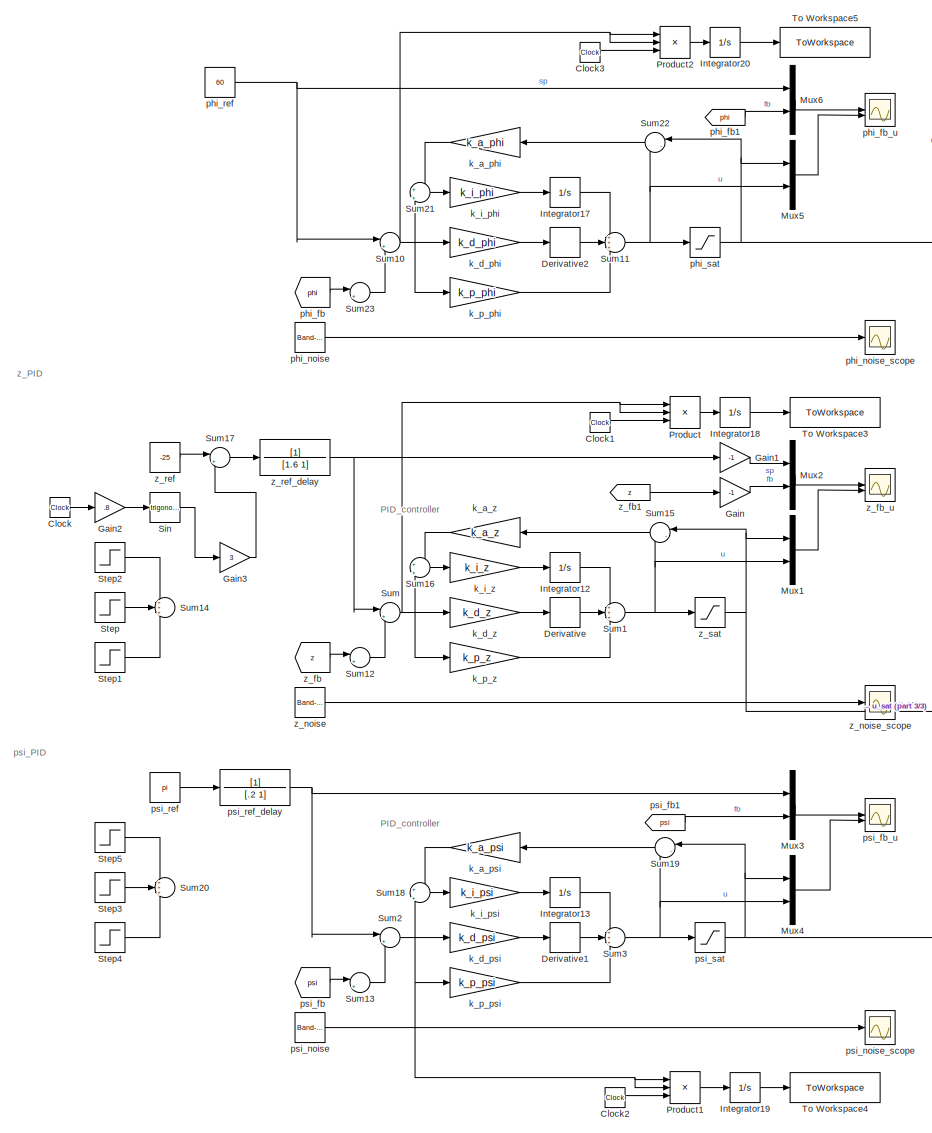
[diagram: root canvas - part 1/3, center side, full height]
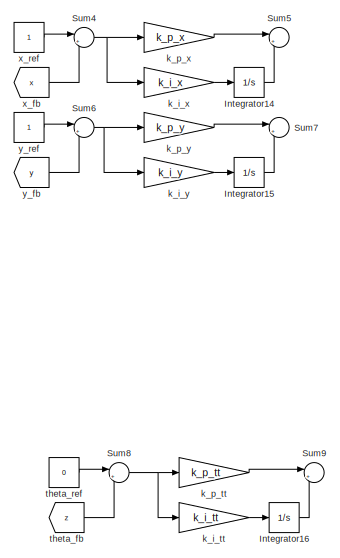
[diagram: root canvas - part 2/3, top left region]
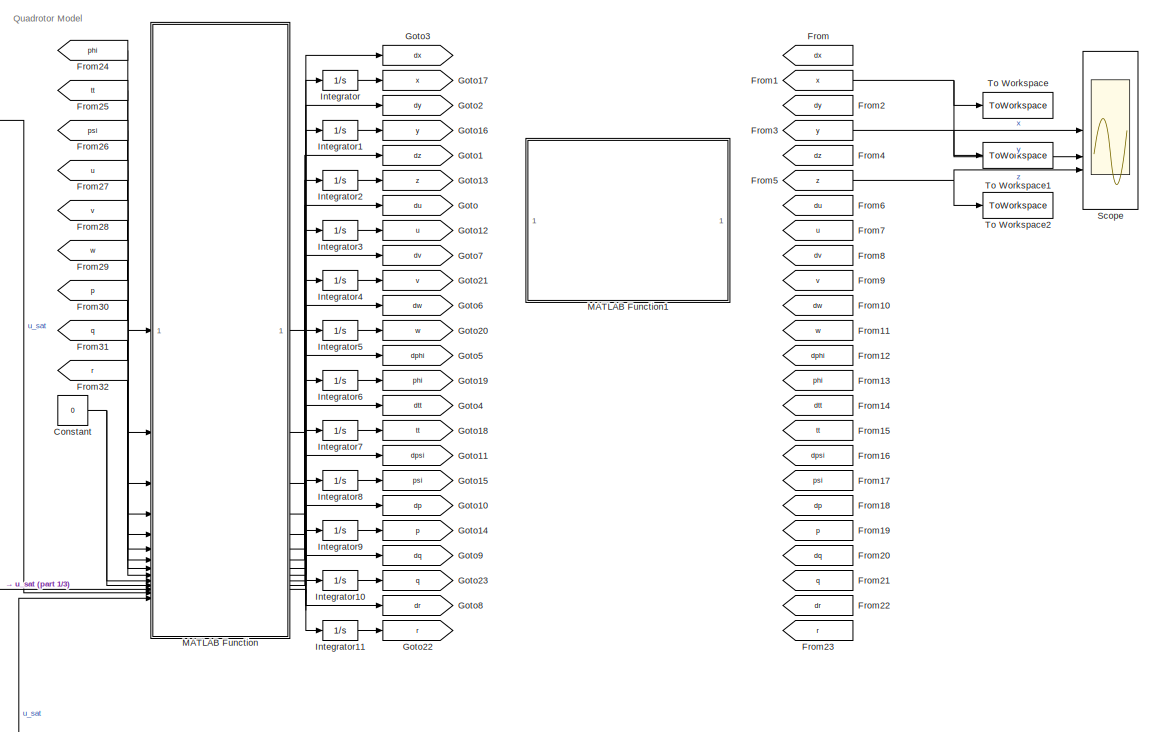
[diagram: root canvas - part 3/3, middle right region]
MODEL slx_5ff0565ddea8
KIND model
CONFIG AbsTol = auto
CONFIG EnableMultiTasking = off
CONFIG FixedStep = 1e-4
CONFIG InitFcn = % z\nk_p_z = -9.64;\nk_i_z = -5.55;\nk_d_z = -7.46;\nk_a_z = 1.37;\n\n%psi\nk_p_psi = 6.91;\nk_i_psi = 8.79;\nk_d_psi = 3.95;\nk_a_psi = -3.71;
CONFIG MaxStep = auto
CONFIG MinStep = auto
CONFIG RelTol = 1e-3
CONFIG SampleTimeConstraint = Unconstrained
CONFIG SolverName = FixedStepAuto
CONFIG StartTime = 0.0
CONFIG StopFcn = % plot3(x,y,-z);\n% xlabel('x');\n% ylabel('y');\n% zlabel('z');\n% grid on;
CONFIG StopTime = 15
BLOCK [Clock] Clock
BLOCK [Clock] Clock1
  Commented = on
BLOCK [Clock] Clock2
  Commented = on
BLOCK [Clock] Clock3
BLOCK [Constant] Constant
  Value = 0
BLOCK [Derivative] Derivative
BLOCK [Derivative] Derivative1
BLOCK [Derivative] Derivative2
BLOCK [From] From
  GotoTag = dx
BLOCK [From] From1
  GotoTag = x
BLOCK [From] From10
  GotoTag = dw
BLOCK [From] From11
  GotoTag = w
BLOCK [From] From12
  GotoTag = dphi
BLOCK [From] From13
  GotoTag = phi
BLOCK [From] From14
  GotoTag = dtt
BLOCK [From] From15
  GotoTag = tt
BLOCK [From] From16
  GotoTag = dpsi
BLOCK [From] From17
  GotoTag = psi
BLOCK [From] From18
  GotoTag = dp
BLOCK [From] From19
  GotoTag = p
BLOCK [From] From2
  GotoTag = dy
BLOCK [From] From20
  GotoTag = dq
BLOCK [From] From21
  GotoTag = q
BLOCK [From] From22
  GotoTag = dr
BLOCK [From] From23
  GotoTag = r
BLOCK [From] From24
  GotoTag = phi
BLOCK [From] From25
  GotoTag = tt
BLOCK [From] From26
  GotoTag = psi
BLOCK [From] From27
  GotoTag = u
BLOCK [From] From28
  GotoTag = v
BLOCK [From] From29
  GotoTag = w
BLOCK [From] From3
  GotoTag = y
BLOCK [From] From30
  GotoTag = p
BLOCK [From] From31
  GotoTag = q
BLOCK [From] From32
  GotoTag = r
BLOCK [From] From4
  GotoTag = dz
BLOCK [From] From5
  GotoTag = z
BLOCK [From] From6
  GotoTag = du
BLOCK [From] From7
  GotoTag = u
BLOCK [From] From8
  GotoTag = dv
BLOCK [From] From9
  GotoTag = v
BLOCK [Gain] Gain
  Gain = -1
BLOCK [Gain] Gain1
  Gain = -1
BLOCK [Gain] Gain2
  Gain = .8
BLOCK [Gain] Gain3
  Gain = 3
BLOCK [Goto] Goto
  GotoTag = du
BLOCK [Goto] Goto1
  GotoTag = dz
BLOCK [Goto] Goto10
  GotoTag = dp
BLOCK [Goto] Goto11
  GotoTag = dpsi
BLOCK [Goto] Goto12
  GotoTag = u
BLOCK [Goto] Goto13
  GotoTag = z
BLOCK [Goto] Goto14
  GotoTag = p
BLOCK [Goto] Goto15
  GotoTag = psi
BLOCK [Goto] Goto16
  GotoTag = y
BLOCK [Goto] Goto17
  GotoTag = x
BLOCK [Goto] Goto18
  GotoTag = tt
BLOCK [Goto] Goto19
  GotoTag = phi
BLOCK [Goto] Goto2
  GotoTag = dy
BLOCK [Goto] Goto20
  GotoTag = w
BLOCK [Goto] Goto21
  GotoTag = v
BLOCK [Goto] Goto22
  GotoTag = r
BLOCK [Goto] Goto23
  GotoTag = q
BLOCK [Goto] Goto3
  GotoTag = dx
BLOCK [Goto] Goto4
  GotoTag = dtt
BLOCK [Goto] Goto5
  GotoTag = dphi
BLOCK [Goto] Goto6
  GotoTag = dw
BLOCK [Goto] Goto7
  GotoTag = dv
BLOCK [Goto] Goto8
  GotoTag = dr
BLOCK [Goto] Goto9
  GotoTag = dq
BLOCK [Integrator] Integrator
BLOCK [Integrator] Integrator1
BLOCK [Integrator] Integrator10
  LimitOutput = on
  LowerSaturationLimit = -1000
  UpperSaturationLimit = 1000
BLOCK [Integrator] Integrator11
  LimitOutput = on
  LowerSaturationLimit = -1000
  UpperSaturationLimit = 1000
BLOCK [Integrator] Integrator12
  LowerSaturationLimit = -10000
  UpperSaturationLimit = 10000
BLOCK [Integrator] Integrator13
  LowerSaturationLimit = -100
  UpperSaturationLimit = 100
BLOCK [Integrator] Integrator14
  Commented = on
BLOCK [Integrator] Integrator15
  Commented = on
BLOCK [Integrator] Integrator16
  Commented = on
BLOCK [Integrator] Integrator17
  LimitOutput = on
  LowerSaturationLimit = -1000
  UpperSaturationLimit = 1000
BLOCK [Integrator] Integrator18
  Commented = on
BLOCK [Integrator] Integrator19
  Commented = on
BLOCK [Integrator] Integrator2
  InitialCondition = -10
  LimitOutput = on
  LowerSaturationLimit = -1000
  UpperSaturationLimit = 0
BLOCK [Integrator] Integrator20
BLOCK [Integrator] Integrator3
  LimitOutput = on
  LowerSaturationLimit = -10000
  UpperSaturationLimit = 10000
BLOCK [Integrator] Integrator4
  LimitOutput = on
  LowerSaturationLimit = -10000
  UpperSaturationLimit = 10000
BLOCK [Integrator] Integrator5
  LimitOutput = on
  LowerSaturationLimit = -1000
  UpperSaturationLimit = 1000
BLOCK [Integrator] Integrator6
  LimitOutput = on
  LowerSaturationLimit = -100
  UpperSaturationLimit = 100
BLOCK [Integrator] Integrator7
  LimitOutput = on
  LowerSaturationLimit = -100
  UpperSaturationLimit = 100
BLOCK [Integrator] Integrator8
  LowerSaturationLimit = -100
  UpperSaturationLimit = 100
BLOCK [Integrator] Integrator9
  LimitOutput = on
  LowerSaturationLimit = -1000
  UpperSaturationLimit = 1000
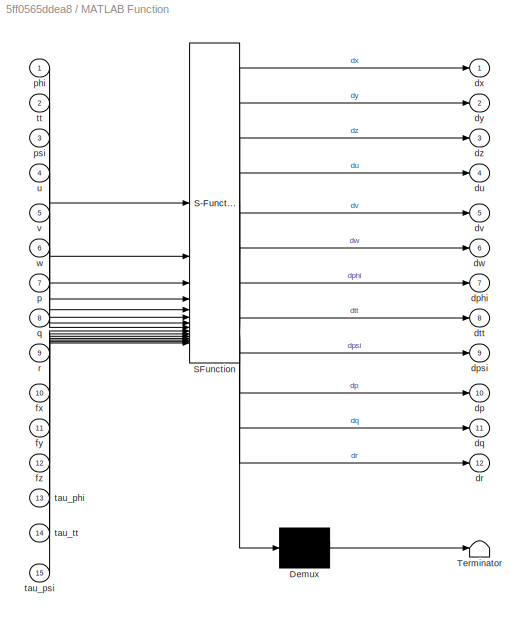
BLOCK [SubSystem] MATLAB Function
  ErrorFcn = Stateflow.Translate.translate
  LibrarySourceBlock = simulink/User-Defined\nFunctions/MATLAB Function
  PermitHierarchicalResolution = ExplicitOnly
  SFBlockType = MATLAB Function
  TreatAsAtomicUnit = on
BLOCK [Demux] MATLAB Function/ Demux 
  Outputs = 1
BLOCK [S-Function] MATLAB Function/ SFunction 
  EnableBusSupport = on
  FunctionName = sf_sfun
  PortCounts = [15 13]
  SFcnIsStateOwnerBlock = off
  SFunctionDeploymentMode = off
  Tag = Stateflow S-Function 2
BLOCK [Terminator] MATLAB Function/ Terminator 
BLOCK [Outport] MATLAB Function/dp
  Port = 10
BLOCK [Outport] MATLAB Function/dphi
  Port = 7
BLOCK [Outport] MATLAB Function/dpsi
  Port = 9
BLOCK [Outport] MATLAB Function/dq
  Port = 11
BLOCK [Outport] MATLAB Function/dr
  Port = 12
BLOCK [Outport] MATLAB Function/dtt
  Port = 8
BLOCK [Outport] MATLAB Function/du
  Port = 4
BLOCK [Outport] MATLAB Function/dv
  Port = 5
BLOCK [Outport] MATLAB Function/dw
  Port = 6
BLOCK [Outport] MATLAB Function/dx
BLOCK [Outport] MATLAB Function/dy
  Port = 2
BLOCK [Outport] MATLAB Function/dz
  Port = 3
BLOCK [Inport] MATLAB Function/fx
  Port = 10
BLOCK [Inport] MATLAB Function/fy
  Port = 11
BLOCK [Inport] MATLAB Function/fz
  Port = 12
BLOCK [Inport] MATLAB Function/p
  Port = 7
BLOCK [Inport] MATLAB Function/phi
BLOCK [Inport] MATLAB Function/psi
  Port = 3
BLOCK [Inport] MATLAB Function/q
  Port = 8
BLOCK [Inport] MATLAB Function/r
  Port = 9
BLOCK [Inport] MATLAB Function/tau_phi
  Port = 13
BLOCK [Inport] MATLAB Function/tau_psi
  Port = 15
BLOCK [Inport] MATLAB Function/tau_tt
  Port = 14
BLOCK [Inport] MATLAB Function/tt
  Port = 2
BLOCK [Inport] MATLAB Function/u
  Port = 4
BLOCK [Inport] MATLAB Function/v
  Port = 5
BLOCK [Inport] MATLAB Function/w
  Port = 6
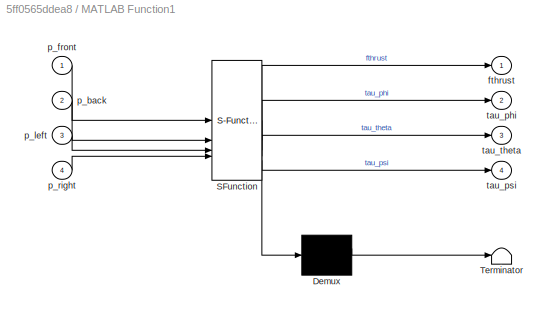
BLOCK [SubSystem] MATLAB Function1
  Commented = on
  ErrorFcn = Stateflow.Translate.translate
  PermitHierarchicalResolution = ExplicitOnly
  SFBlockType = MATLAB Function
  TreatAsAtomicUnit = on
BLOCK [Demux] MATLAB Function1/ Demux 
  Outputs = 1
BLOCK [S-Function] MATLAB Function1/ SFunction 
  EnableBusSupport = on
  FunctionName = sf_sfun
  PortCounts = [4 5]
  SFcnIsStateOwnerBlock = off
  SFunctionDeploymentMode = off
  Tag = Stateflow S-Function 1
BLOCK [Terminator] MATLAB Function1/ Terminator 
BLOCK [Outport] MATLAB Function1/fthrust
BLOCK [Inport] MATLAB Function1/p_back
  Port = 2
BLOCK [Inport] MATLAB Function1/p_front
BLOCK [Inport] MATLAB Function1/p_left
  Port = 3
BLOCK [Inport] MATLAB Function1/p_right
  Port = 4
BLOCK [Outport] MATLAB Function1/tau_phi
  Port = 2
BLOCK [Outport] MATLAB Function1/tau_psi
  Port = 4
BLOCK [Outport] MATLAB Function1/tau_theta
  Port = 3
BLOCK [Mux] Mux1
  DisplayOption = bar
  Inputs = 2
  NameLocation = top
BLOCK [Mux] Mux2
  DisplayOption = bar
  Inputs = 2
  NameLocation = top
BLOCK [Mux] Mux3
  DisplayOption = bar
  Inputs = 2
  NameLocation = top
BLOCK [Mux] Mux4
  DisplayOption = bar
  Inputs = 2
  NameLocation = top
BLOCK [Mux] Mux5
  DisplayOption = bar
  Inputs = 2
  NameLocation = top
BLOCK [Mux] Mux6
  DisplayOption = bar
  Inputs = 2
  NameLocation = top
BLOCK [Product] Product
  Commented = on
  Inputs = 3
BLOCK [Product] Product1
  Commented = on
  Inputs = 3
BLOCK [Product] Product2
  Inputs = 3
BLOCK [Scope] Scope
  Floating = off
  NumInputPorts = 3
  ScopeSpecificationString = Simulink.scopes.TimeScopeBlockCfg('CurrentConfiguration', extmgr.ConfigurationSet(extmgr.Configuration('Core','General UI',true,'FigureColor',[1 1 1]),extmgr.Configuration('Core','Source UI',true),extmgr.Configuration('Sources','WiredSimulink',true),extmgr.Configuration('Visuals','Time Domain',true,'SerializedDisplays',{struct('MinYLimReal','-0.11494','MaxYLimReal','0.1867','YLabelReal','','MinYLi...<+3043ch>
BLOCK [Trigonometry] Sin
BLOCK [Step] Step
  After = -20
  SampleTime = 0
  Time = 25
BLOCK [Step] Step1
  After = 15
  SampleTime = 0
  Time = 40
BLOCK [Step] Step2
  After = -5
  SampleTime = 0
  Time = 10
BLOCK [Step] Step3
  After = -6.28
  SampleTime = 0
  Time = 8
BLOCK [Step] Step4
  After = 6.28
  SampleTime = 0
  Time = 17
BLOCK [Step] Step5
  After = 3.14
  SampleTime = 0
BLOCK [Sum] Sum
  Inputs = |+-
BLOCK [Sum] Sum1
  Inputs = +++
BLOCK [Sum] Sum10
  Inputs = |+-
BLOCK [Sum] Sum11
  Inputs = +++
BLOCK [Sum] Sum12
  Inputs = |++
BLOCK [Sum] Sum13
  Inputs = |++
BLOCK [Sum] Sum14
  Inputs = +++
BLOCK [Sum] Sum15
  Inputs = |-+
BLOCK [Sum] Sum16
  Inputs = +|+
BLOCK [Sum] Sum17
  Inputs = |++
BLOCK [Sum] Sum18
  Inputs = +|+
BLOCK [Sum] Sum19
  Inputs = |-+
BLOCK [Sum] Sum2
  Inputs = |+-
BLOCK [Sum] Sum20
  Inputs = +++
BLOCK [Sum] Sum21
  Inputs = +|+
BLOCK [Sum] Sum22
  Inputs = |-+
BLOCK [Sum] Sum23
  Inputs = |++
BLOCK [Sum] Sum3
  Inputs = +++
BLOCK [Sum] Sum4
  Commented = on
  Inputs = |+-
BLOCK [Sum] Sum5
  Commented = on
  Inputs = |++
BLOCK [Sum] Sum6
  Commented = on
  Inputs = |+-
BLOCK [Sum] Sum7
  Commented = on
  Inputs = |++
BLOCK [Sum] Sum8
  Commented = on
  Inputs = |+-
BLOCK [Sum] Sum9
  Commented = on
  Inputs = |++
BLOCK [ToWorkspace] To Workspace
  FixptAsFi = on
  MaxDataPoints = inf
  SampleTime = -1
  Save2DSignal = 2-D array (concatenate along first dimension)
  VariableName = x
BLOCK [ToWorkspace] To Workspace1
  FixptAsFi = on
  MaxDataPoints = inf
  SampleTime = -1
  Save2DSignal = 2-D array (concatenate along first dimension)
  VariableName = y
BLOCK [ToWorkspace] To Workspace2
  FixptAsFi = on
  MaxDataPoints = inf
  SampleTime = -1
  Save2DSignal = 2-D array (concatenate along first dimension)
  VariableName = z
BLOCK [ToWorkspace] To Workspace3
  Commented = on
  FixptAsFi = on
  MaxDataPoints = inf
  SampleTime = -1
  VariableName = ITSE_z
BLOCK [ToWorkspace] To Workspace4
  Commented = on
  FixptAsFi = on
  MaxDataPoints = inf
  SampleTime = -1
  VariableName = ITSE_psi
BLOCK [ToWorkspace] To Workspace5
  FixptAsFi = on
  MaxDataPoints = inf
  SampleTime = -1
  VariableName = ITSE_phi
BLOCK [Gain] k_a_phi
  Gain = k_a_phi
BLOCK [Gain] k_a_psi
  Gain = k_a_psi
BLOCK [Gain] k_a_z
  Gain = k_a_z
BLOCK [Gain] k_d_phi
  Gain = k_d_phi
BLOCK [Gain] k_d_psi
  Gain = k_d_psi
BLOCK [Gain] k_d_z
  Gain = k_d_z
BLOCK [Gain] k_i_phi
  Gain = k_i_phi
BLOCK [Gain] k_i_psi
  Gain = k_i_psi
BLOCK [Gain] k_i_tt
  Commented = on
  Gain = k_i_tt
BLOCK [Gain] k_i_x
  Commented = on
  Gain = k_i_x
BLOCK [Gain] k_i_y
  Commented = on
  Gain = k_i_y
BLOCK [Gain] k_i_z
  Gain = k_i_z
BLOCK [Gain] k_p_phi
  Gain = k_p_phi
BLOCK [Gain] k_p_psi
  Gain = k_p_psi
BLOCK [Gain] k_p_tt
  Commented = on
  Gain = k_p_tt
BLOCK [Gain] k_p_x
  Commented = on
  Gain = k_p_x
BLOCK [Gain] k_p_y
  Commented = on
  Gain = k_p_y
BLOCK [Gain] k_p_z
  Gain = k_p_z
BLOCK [From] phi_fb
  GotoTag = phi
BLOCK [From] phi_fb1
  GotoTag = phi
  NameLocation = top
BLOCK [Scope] phi_fb_u
  Floating = off
  NumInputPorts = 2
  ScopeSpecificationString = Simulink.scopes.TimeScopeBlockCfg('CurrentConfiguration', extmgr.ConfigurationSet(extmgr.Configuration('Core','General UI',true,'FigureColor',[1 1 1]),extmgr.Configuration('Core','Source UI',true),extmgr.Configuration('Sources','WiredSimulink',true,'DataLoggingVariableName','ScopeData2'),extmgr.Configuration('Visuals','Time Domain',true,'SerializedDisplays',{struct('MinYLimReal','-18.75','MaxYLimR...<+2551ch>
BLOCK [Reference] phi_noise  REF=simulink/Sources/Band-Limited
White Noise
  SourceBlock = simulink/Sources/Band-Limited\nWhite Noise
  SourceType = Band-Limited White Noise.
BLOCK [Scope] phi_noise_scope
  Floating = off
  NumInputPorts = 1
  ScopeSpecificationString = Simulink.scopes.TimeScopeBlockCfg('CurrentConfiguration', extmgr.ConfigurationSet(extmgr.Configuration('Core','General UI',true,'FigureColor',[1 1 1]),extmgr.Configuration('Core','Source UI',true),extmgr.Configuration('Sources','WiredSimulink',true,'DataLoggingVariableName','ScopeData1'),extmgr.Configuration('Visuals','Time Domain',true,'SerializedDisplays',{struct('MinYLimReal','-0.93017','MaxYLi...<+1778ch>
BLOCK [Constant] phi_ref
  Value = 60
BLOCK [Saturate] phi_sat
  LowerLimit = -100
  UpperLimit = 100
BLOCK [From] psi_fb
  GotoTag = psi
BLOCK [From] psi_fb1
  GotoTag = psi
  NameLocation = top
BLOCK [Scope] psi_fb_u
  Floating = off
  NumInputPorts = 2
  ScopeSpecificationString = Simulink.scopes.TimeScopeBlockCfg('CurrentConfiguration', extmgr.ConfigurationSet(extmgr.Configuration('Core','General UI',true,'FigureColor',[1 1 1]),extmgr.Configuration('Core','Source UI',true),extmgr.Configuration('Sources','WiredSimulink',true,'DataLoggingVariableName','ScopeData1'),extmgr.Configuration('Visuals','Time Domain',true,'SerializedDisplays',{struct('MinYLimReal','-3191210425250519...<+4367ch>
BLOCK [Reference] psi_noise  REF=simulink/Sources/Band-Limited
White Noise
  SourceBlock = simulink/Sources/Band-Limited\nWhite Noise
  SourceType = Band-Limited White Noise.
BLOCK [Scope] psi_noise_scope
  Floating = off
  NumInputPorts = 1
  ScopeSpecificationString = Simulink.scopes.TimeScopeBlockCfg('CurrentConfiguration', extmgr.ConfigurationSet(extmgr.Configuration('Core','General UI',true,'FigureColor',[1 1 1]),extmgr.Configuration('Core','Source UI',true),extmgr.Configuration('Sources','WiredSimulink',true,'DataLoggingVariableName','ScopeData1'),extmgr.Configuration('Visuals','Time Domain',true,'SerializedDisplays',{struct('MinYLimReal','-0.3146','MaxYLim...<+1770ch>
BLOCK [Constant] psi_ref
  Value = pi
BLOCK [TransferFcn] psi_ref_delay
  Denominator = [.2 1]
BLOCK [Saturate] psi_sat
  LowerLimit = -20
  UpperLimit = 20
BLOCK [From] theta_fb
  Commented = on
  GotoTag = z
BLOCK [Constant] theta_ref
  Commented = on
  Value = 0
BLOCK [From] x_fb
  Commented = on
  GotoTag = x
BLOCK [Constant] x_ref
  Commented = on
BLOCK [From] y_fb
  Commented = on
  GotoTag = y
BLOCK [Constant] y_ref
  Commented = on
BLOCK [From] z_fb
  GotoTag = z
BLOCK [From] z_fb1
  GotoTag = z
  NameLocation = top
BLOCK [Scope] z_fb_u
  Floating = off
  NumInputPorts = 2
  ScopeSpecificationString = Simulink.scopes.TimeScopeBlockCfg('CurrentConfiguration', extmgr.ConfigurationSet(extmgr.Configuration('Core','General UI',true,'FigureColor',[1 1 1]),extmgr.Configuration('Core','Source UI',true),extmgr.Configuration('Sources','WiredSimulink',true,'DataLoggingVariableName','ScopeData1'),extmgr.Configuration('Visuals','Time Domain',true,'SerializedDisplays',{struct('MinYLimReal','-69.54533','MaxYL...<+2564ch>
BLOCK [Reference] z_noise  REF=simulink/Sources/Band-Limited
White Noise
  SourceBlock = simulink/Sources/Band-Limited\nWhite Noise
  SourceType = Band-Limited White Noise.
BLOCK [Scope] z_noise_scope
  Floating = off
  NumInputPorts = 1
  ScopeSpecificationString = Simulink.scopes.TimeScopeBlockCfg('CurrentConfiguration', extmgr.ConfigurationSet(extmgr.Configuration('Core','General UI',true,'FigureColor',[1 1 1]),extmgr.Configuration('Core','Source UI',true),extmgr.Configuration('Sources','WiredSimulink',true,'DataLoggingVariableName','ScopeData1'),extmgr.Configuration('Visuals','Time Domain',true,'SerializedDisplays',{struct('MinYLimReal','-0.99485','MaxYLi...<+1776ch>
BLOCK [Constant] z_ref
  Value = -25
BLOCK [TransferFcn] z_ref_delay
  Denominator = [1.6 1]
BLOCK [Saturate] z_sat
  LowerLimit = 0
  UpperLimit = 100
ANNOTATION (root): PID_controller
ANNOTATION (root): Quadrotor Model
ANNOTATION (root): psi_PID
ANNOTATION (root): z_PID
LINE Clock1:1 -> Product:3
LINE Clock2:1 -> Product1:3
LINE Clock3:1 -> Product2:3
LINE Clock:1 -> Gain2:1
NET Constant:1 -> MATLAB Function:10, MATLAB Function:11
LINE Derivative1:1 -> Sum3:2
LINE Derivative2:1 -> Sum11:2
LINE Derivative:1 -> Sum1:2
NET From1:1 -> Scope:1, To Workspace:1
LINE From24:1 -> MATLAB Function:1
LINE From25:1 -> MATLAB Function:2
LINE From26:1 -> MATLAB Function:3
LINE From27:1 -> MATLAB Function:4
LINE From28:1 -> MATLAB Function:5
LINE From29:1 -> MATLAB Function:6
LINE From30:1 -> MATLAB Function:7
LINE From31:1 -> MATLAB Function:8
LINE From32:1 -> MATLAB Function:9
NET From3:1 -> Scope:2, To Workspace1:1
NET From5:1 -> Scope:3, To Workspace2:1
LINE Gain1:1 -> Mux2:1
LINE Gain2:1 -> Sin:1
LINE Gain3:1 -> Sum17:2
LINE Gain:1 -> Mux2:2
LINE Integrator10:1 -> Goto23:1
LINE Integrator11:1 -> Goto22:1
LINE Integrator12:1 -> Sum1:1
LINE Integrator13:1 -> Sum3:1
LINE Integrator14:1 -> Sum5:2
LINE Integrator15:1 -> Sum7:2
LINE Integrator16:1 -> Sum9:2
LINE Integrator17:1 -> Sum11:1
LINE Integrator18:1 -> To Workspace3:1
LINE Integrator19:1 -> To Workspace4:1
LINE Integrator1:1 -> Goto16:1
LINE Integrator20:1 -> To Workspace5:1
LINE Integrator2:1 -> Goto13:1
LINE Integrator3:1 -> Goto12:1
LINE Integrator4:1 -> Goto21:1
LINE Integrator5:1 -> Goto20:1
LINE Integrator6:1 -> Goto19:1
LINE Integrator7:1 -> Goto18:1
LINE Integrator8:1 -> Goto15:1
LINE Integrator9:1 -> Goto14:1
LINE Integrator:1 -> Goto17:1
NET MATLAB Function:1 -> Goto3:1, Integrator:1
NET MATLAB Function:10 -> Goto10:1, Integrator9:1
NET MATLAB Function:11 -> Goto9:1, Integrator10:1
NET MATLAB Function:12 -> Goto8:1, Integrator11:1
NET MATLAB Function:2 -> Goto2:1, Integrator1:1
NET MATLAB Function:3 -> Goto1:1, Integrator2:1
NET MATLAB Function:4 -> Goto:1, Integrator3:1
NET MATLAB Function:5 -> Goto7:1, Integrator4:1
NET MATLAB Function:6 -> Goto6:1, Integrator5:1
NET MATLAB Function:7 -> Goto5:1, Integrator6:1
NET MATLAB Function:8 -> Goto4:1, Integrator7:1
NET MATLAB Function:9 -> Goto11:1, Integrator8:1
LINE Mux1:1 -> z_fb_u:2
LINE Mux2:1 -> z_fb_u:1
LINE Mux3:1 -> psi_fb_u:1
LINE Mux4:1 -> psi_fb_u:2
LINE Mux5:1 -> phi_fb_u:2
LINE Mux6:1 -> phi_fb_u:1
LINE Product1:1 -> Integrator19:1
LINE Product2:1 -> Integrator20:1
LINE Product:1 -> Integrator18:1
LINE Sin:1 -> Gain3:1
LINE Step1:1 -> Sum14:3
LINE Step2:1 -> Sum14:1
LINE Step3:1 -> Sum20:2
LINE Step4:1 -> Sum20:3
LINE Step5:1 -> Sum20:1
LINE Step:1 -> Sum14:2
NET Sum10:1 -> Product2:1, Product2:2, Sum21:2, k_d_phi:1, k_p_phi:1
NET Sum11:1 -> Mux5:2, Sum22:2, phi_sat:1
LINE Sum12:1 -> Sum:2
LINE Sum13:1 -> Sum2:2
LINE Sum15:1 -> k_a_z:1
LINE Sum16:1 -> k_i_z:1
LINE Sum17:1 -> z_ref_delay:1
LINE Sum18:1 -> k_i_psi:1
LINE Sum19:1 -> k_a_psi:1
NET Sum1:1 -> Mux1:2, Sum15:2, z_sat:1
LINE Sum21:1 -> k_i_phi:1
LINE Sum22:1 -> k_a_phi:1
LINE Sum23:1 -> Sum10:2
NET Sum2:1 -> Product1:1, Product1:2, Sum18:2, k_d_psi:1, k_p_psi:1
NET Sum3:1 -> Mux4:2, Sum19:2, psi_sat:1
NET Sum4:1 -> k_i_x:1, k_p_x:1
NET Sum6:1 -> k_i_y:1, k_p_y:1
NET Sum8:1 -> k_i_tt:1, k_p_tt:1
NET Sum:1 -> Product:1, Product:2, Sum16:2, k_d_z:1, k_p_z:1
LINE k_a_phi:1 -> Sum21:1
LINE k_a_psi:1 -> Sum18:1
LINE k_a_z:1 -> Sum16:1
LINE k_d_phi:1 -> Derivative2:1
LINE k_d_psi:1 -> Derivative1:1
LINE k_d_z:1 -> Derivative:1
LINE k_i_phi:1 -> Integrator17:1
LINE k_i_psi:1 -> Integrator13:1
LINE k_i_tt:1 -> Integrator16:1
LINE k_i_x:1 -> Integrator14:1
LINE k_i_y:1 -> Integrator15:1
LINE k_i_z:1 -> Integrator12:1
LINE k_p_phi:1 -> Sum11:3
LINE k_p_psi:1 -> Sum3:3
LINE k_p_tt:1 -> Sum9:1
LINE k_p_x:1 -> Sum5:1
LINE k_p_y:1 -> Sum7:1
LINE k_p_z:1 -> Sum1:3
LINE phi_fb1:1 -> Mux6:2
LINE phi_fb:1 -> Sum23:1
LINE phi_noise:1 -> phi_noise_scope:1
NET phi_ref:1 -> Mux6:1, Sum10:1
NET phi_sat:1 -> MATLAB Function:13, Mux5:1, Sum22:1
LINE psi_fb1:1 -> Mux3:2
LINE psi_fb:1 -> Sum13:1
LINE psi_noise:1 -> psi_noise_scope:1
LINE psi_ref:1 -> psi_ref_delay:1
NET psi_ref_delay:1 -> Mux3:1, Sum2:1
NET psi_sat:1 -> MATLAB Function:15, Mux4:1, Sum19:1
LINE theta_fb:1 -> Sum8:2
LINE theta_ref:1 -> Sum8:1
LINE x_fb:1 -> Sum4:2
LINE x_ref:1 -> Sum4:1
LINE y_fb:1 -> Sum6:2
LINE y_ref:1 -> Sum6:1
LINE z_fb1:1 -> Gain:1
LINE z_fb:1 -> Sum12:1
LINE z_noise:1 -> z_noise_scope:1
LINE z_ref:1 -> Sum17:1
NET z_ref_delay:1 -> Gain1:1, Sum:1
NET z_sat:1 -> MATLAB Function:12, Mux1:1, Sum15:1
note: NET lines group one-source signal fan-out (src -> all destinations, sorted); 1:1 wires keep LINE
CHART MATLAB Function1 states=1 transitions=1
  STATE_LABEL 'eML_blk_kernel()'
  STATE_LABEL 'SCRIPT:\nfunction [fthrust, tau_phi, tau_theta, tau_psi] = Motor_dynamics(p_front, p_back, p_left, p_right)\n\nfthrust = k_thrust*(p_front+p_back+p_left+p_right);\ntau_phi = l*k_thrust*(-p_right+p_left);\ntau_theta = l*k_thrust*(p_front+p_back);\ntau_psi = k_momen*(-p_front-p_back+p_left+p_right);'
CHART MATLAB Function states=1 transitions=1
  STATE_LABEL 'eML_blk_kernel()'
  STATE_LABEL 'SCRIPT:\nfunction [dx,dy,dz,du,dv,dw,dphi,dtt,dpsi,dp,dq,dr]=Dynamics_plustype(phi,tt,psi,u,v,w,p,q,r,fx,fy,fz,tau_phi,tau_tt,tau_psi)\n\n% Eqs. 16-19\n\nM = .75;\nm = .05;\ng = 9.81;\nR = .03;\nl = .22;\n\nJx = .4*M*R*R+2*l*l*m;\nJy = .4*M*R*R+2*l*l*m;\nJz = .4*M*R*R+4*l*l*m;\n\ndx = cos(tt)*cos(psi)*u+(sin(phi)*sin(tt)*cos(psi)-cos(phi)*sin(psi))*v+(cos(phi)*sin(tt)*cos(psi)+sin(phi)*sin(psi))*w;\ndy = cos(tt)*...<+492ch>'
CHART  states=0 transitions=0
CHART  states=0 transitions=0
